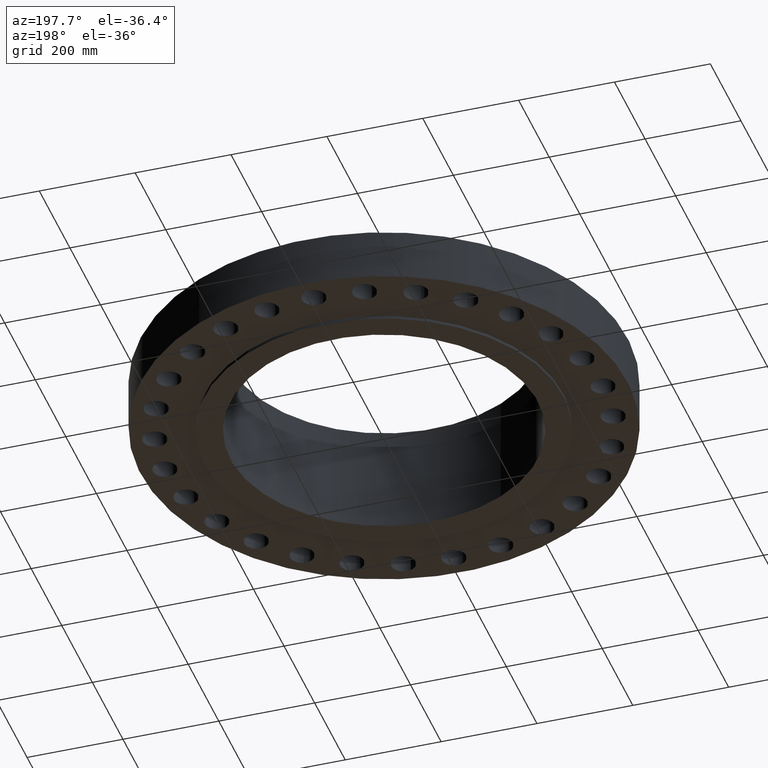
[diagram: clean part render]
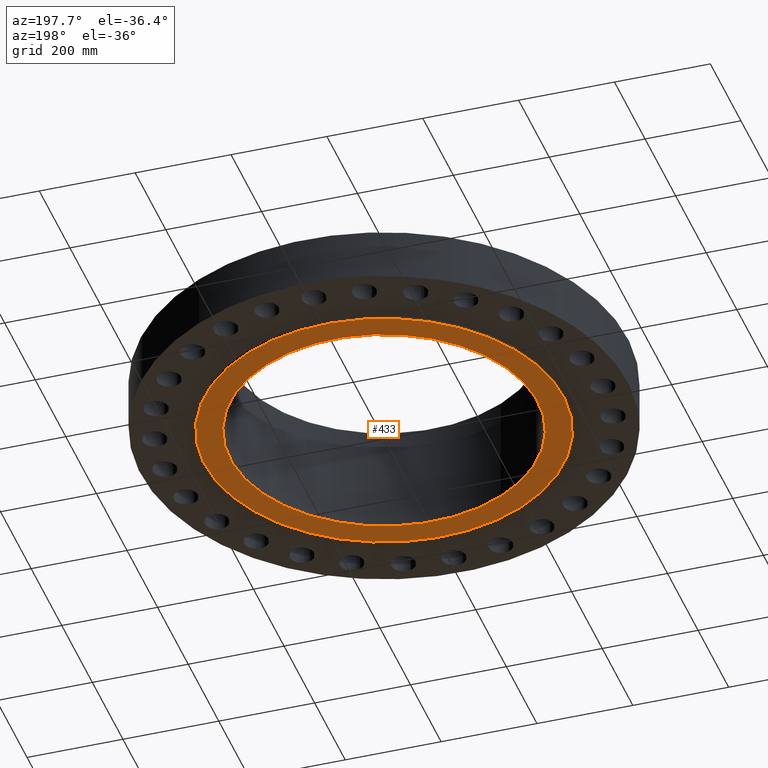
[diagram: same view with one face highlighted and labeled with its STEP entity id]
A machine part, auxiliary view. The second image highlights one B-rep face of the part: STEP entity #433.
In plain terms, the highlighted planar face has unit normal (0, 0, -1).
Its self-contained STEP definition (entity closure, byte-faithful):
#377=AXIS2_PLACEMENT_3D('Circle Axis2P3D',#375,#376,$) ;
#396=AXIS2_PLACEMENT_3D('Circle Axis2P3D',#394,#395,$) ;
#409=AXIS2_PLACEMENT_3D('Plane Axis2P3D',#406,#407,#408) ;
#413=AXIS2_PLACEMENT_3D('Circle Axis2P3D',#411,#412,$) ;
#422=AXIS2_PLACEMENT_3D('Circle Axis2P3D',#420,#421,$) ;
#372=CARTESIAN_POINT('Vertex',(6.0527474249,11.0794798439,-0.250000000001)) ;
#375=CARTESIAN_POINT('Axis2P3D Location',(0.,0.,-0.250000000001)) ;
#379=CARTESIAN_POINT('Vertex',(-6.0527474249,-11.0794798439,-0.250000000001)) ;
#394=CARTESIAN_POINT('Axis2P3D Location',(0.,0.,-0.250000000001)) ;
#406=CARTESIAN_POINT('Axis2P3D Location',(0.,12.6250000001,-0.250000000001)) ;
#411=CARTESIAN_POINT('Axis2P3D Location',(0.,0.,-0.250000000001)) ;
#415=CARTESIAN_POINT('Vertex',(-7.07152669444,-12.9443427879,-0.250000000001)) ;
#417=CARTESIAN_POINT('Vertex',(7.07152669444,12.9443427879,-0.250000000001)) ;
#420=CARTESIAN_POINT('Axis2P3D Location',(0.,0.,-0.250000000001)) ;
#376=DIRECTION('Axis2P3D Direction',(0.,0.,-0.0393700787402)) ;
#395=DIRECTION('Axis2P3D Direction',(0.,0.,-0.0393700787402)) ;
#407=DIRECTION('Axis2P3D Direction',(0.,0.,-0.0393700787402)) ;
#408=DIRECTION('Axis2P3D XDirection',(0.0393700787402,0.,0.)) ;
#412=DIRECTION('Axis2P3D Direction',(0.,0.,-0.0393700787402)) ;
#421=DIRECTION('Axis2P3D Direction',(0.,0.,-0.0393700787402)) ;
#426=ORIENTED_EDGE('',*,*,#419,.T.) ;
#427=ORIENTED_EDGE('',*,*,#424,.T.) ;
#430=ORIENTED_EDGE('',*,*,#381,.F.) ;
#431=ORIENTED_EDGE('',*,*,#398,.F.) ;
#432=FACE_BOUND('',#429,.T.) ;
#433=ADVANCED_FACE('PartBody',(#428,#432),#410,.T.) ;
#378=CIRCLE('generated circle',#377,12.6250000001) ;
#397=CIRCLE('generated circle',#396,12.6250000001) ;
#414=CIRCLE('generated circle',#413,14.7500000001) ;
#423=CIRCLE('generated circle',#422,14.7500000001) ;
#381=EDGE_CURVE('',#373,#380,#378,.T.) ;
#398=EDGE_CURVE('',#380,#373,#397,.T.) ;
#419=EDGE_CURVE('',#416,#418,#414,.T.) ;
#424=EDGE_CURVE('',#418,#416,#423,.T.) ;
#425=EDGE_LOOP('',(#426,#427)) ;
#429=EDGE_LOOP('',(#430,#431)) ;
#428=FACE_OUTER_BOUND('',#425,.T.) ;
#410=PLANE('',#409) ;
#373=VERTEX_POINT('',#372) ;
#380=VERTEX_POINT('',#379) ;
#416=VERTEX_POINT('',#415) ;
#418=VERTEX_POINT('',#417) ;